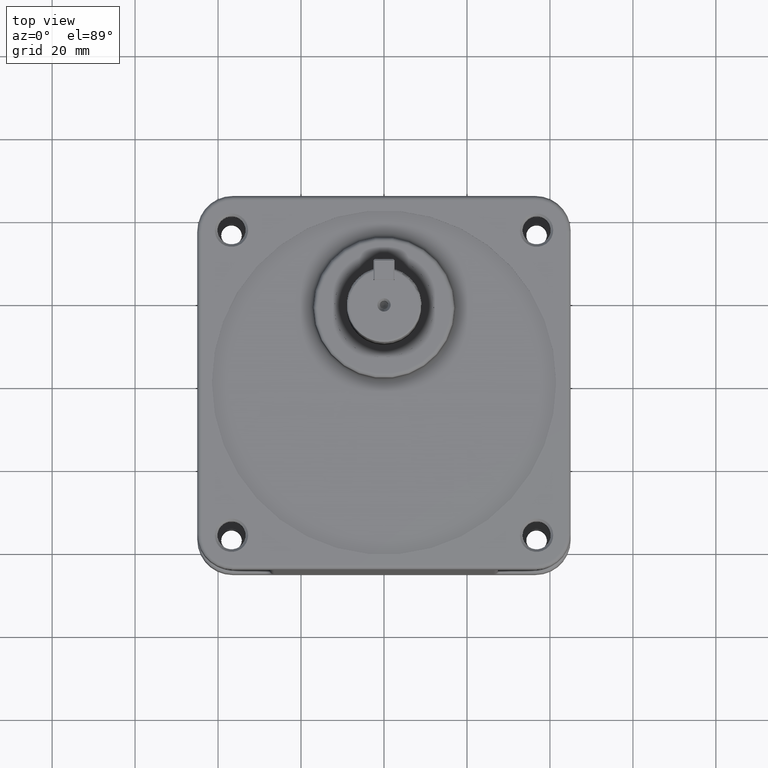
[diagram: clean part render]
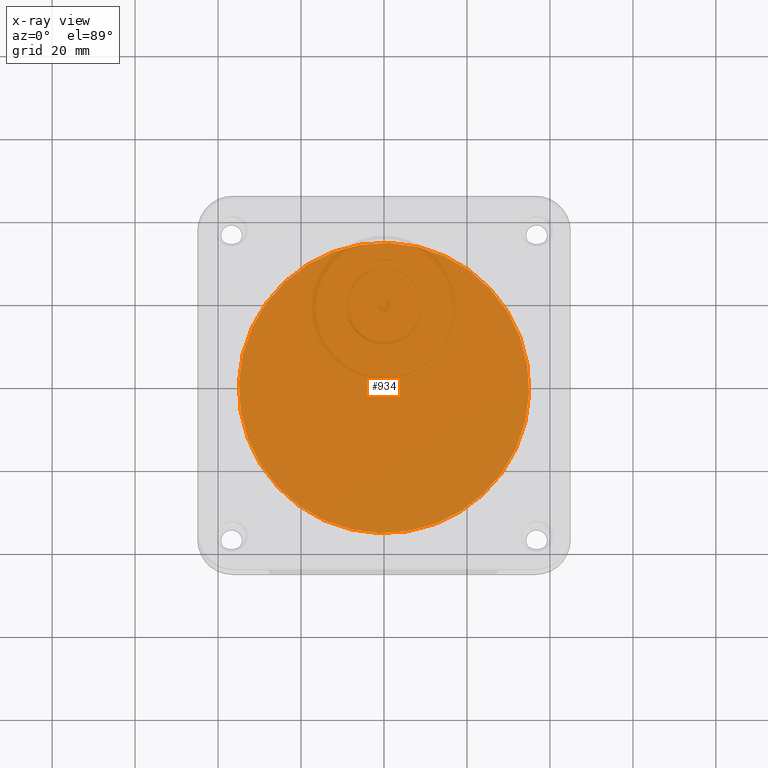
[diagram: x-ray — body ghosted, one internal face saturated and labeled with its STEP entity id]
A machine part, top view, then the same camera in x-ray: the body is ghosted and one INTERNAL B-rep face — a face not visible from any outside direction — is saturated and labeled: STEP entity #934.
In plain terms, the highlighted planar face has unit normal (0, 0, -1).
Its self-contained STEP definition (entity closure, byte-faithful):
#910 = EDGE_LOOP ( 'NONE', ( #977, #968 ) ) ;
#924 = VERTEX_POINT ( 'NONE', #5797 ) ;
#934 = ADVANCED_FACE ( 'NONE', ( #5804 ), #5802, .T. ) ;
#937 = EDGE_CURVE ( 'NONE', #948, #924, #5795, .T. ) ;
#948 = VERTEX_POINT ( 'NONE', #5835 ) ;
#968 = ORIENTED_EDGE ( 'NONE', *, *, #937, .T. ) ;
#977 = ORIENTED_EDGE ( 'NONE', *, *, #982, .T. ) ;
#982 = EDGE_CURVE ( 'NONE', #924, #948, #5880, .T. ) ;
#5762 = AXIS2_PLACEMENT_3D ( 'NONE', #5792, #5794, #5785 ) ;
#5780 = DIRECTION ( 'NONE',  ( 1.000000000000000000, 0.0000000000000000000, 0.0000000000000000000 ) ) ;
#5781 = AXIS2_PLACEMENT_3D ( 'NONE', #5788, #5803, #5780 ) ;
#5785 = DIRECTION ( 'NONE',  ( 1.000000000000000000, 0.0000000000000000000, -0.0000000000000000000 ) ) ;
#5788 = CARTESIAN_POINT ( 'NONE',  ( 0.0000000000000000000, 0.0000000000000000000, 1.200000000000000000 ) ) ;
#5792 = CARTESIAN_POINT ( 'NONE',  ( -33.09000000000000300, -17.64000000000000100, 1.200000000000000000 ) ) ;
#5794 = DIRECTION ( 'NONE',  ( 0.0000000000000000000, 0.0000000000000000000, 1.000000000000000000 ) ) ;
#5795 = CIRCLE ( 'NONE', #5781, 35.00000000000001400 ) ;
#5797 = CARTESIAN_POINT ( 'NONE',  ( -35.00000000000001400, 0.0000000000000000000, 1.200000000000000000 ) ) ;
#5802 = PLANE ( 'NONE',  #5762 ) ;
#5803 = DIRECTION ( 'NONE',  ( 0.0000000000000000000, 0.0000000000000000000, 1.000000000000000000 ) ) ;
#5804 = FACE_OUTER_BOUND ( 'NONE', #910, .T. ) ;
#5835 = CARTESIAN_POINT ( 'NONE',  ( 35.00000000000001400, 4.286263797015738100E-015, 1.200000000000000000 ) ) ;
#5869 = DIRECTION ( 'NONE',  ( 1.000000000000000000, 0.0000000000000000000, 0.0000000000000000000 ) ) ;
#5870 = DIRECTION ( 'NONE',  ( 0.0000000000000000000, 0.0000000000000000000, 1.000000000000000000 ) ) ;
#5871 = CARTESIAN_POINT ( 'NONE',  ( 0.0000000000000000000, 0.0000000000000000000, 1.200000000000000000 ) ) ;
#5880 = CIRCLE ( 'NONE', #5883, 35.00000000000001400 ) ;
#5883 = AXIS2_PLACEMENT_3D ( 'NONE', #5871, #5870, #5869 ) ;